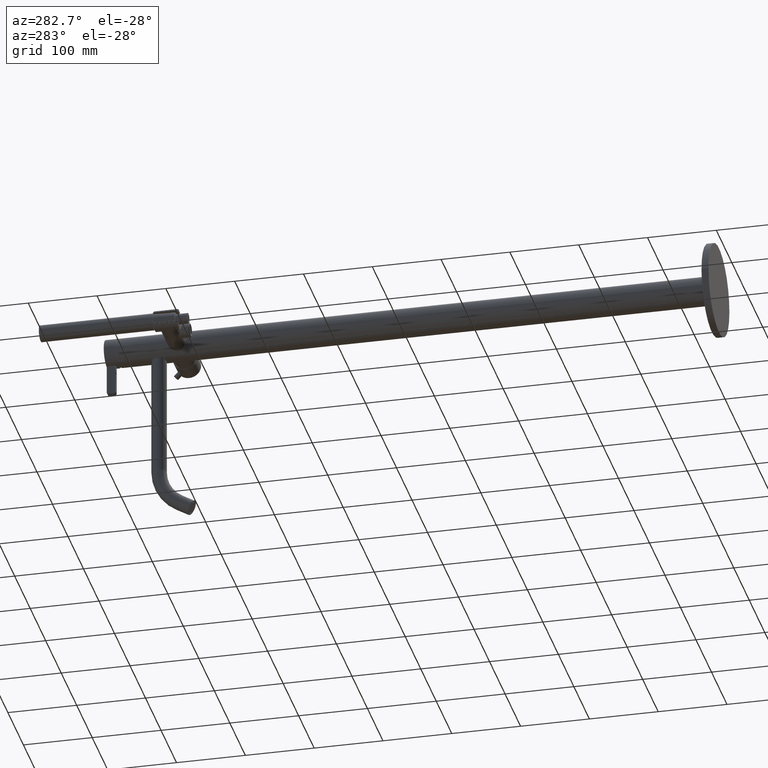
[diagram: clean part render]
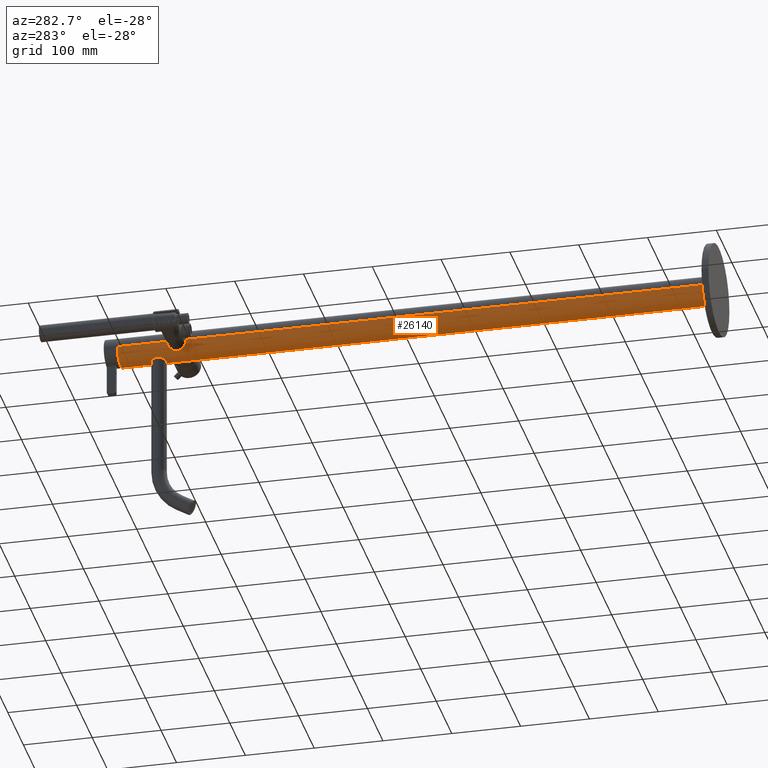
[diagram: same view with one face highlighted and labeled with its STEP entity id]
A machine part, auxiliary view. The second image highlights one B-rep face of the part: STEP entity #26140.
In plain terms, the highlighted cylindrical surface (edge-blend (fillet) strip) has radius 21 mm, axis along (0, -1, 0).
Its self-contained STEP definition (entity closure, byte-faithful):
#10197=CARTESIAN_POINT('',(-2.1E1,8.237257359313E2,0.E0));
#10313=CARTESIAN_POINT('',(-2.1E1,8.514257359313E2,0.E0));
#10315=CARTESIAN_POINT('',(2.1E1,8.546757359313E2,3.477275162954E-14));
#10431=CARTESIAN_POINT('',(2.1E1,8.204757359313E2,-2.837951767113E-14));
#10443=CARTESIAN_POINT('',(1.756270668056E-13,8.565E2,-2.1E1));
#10444=CARTESIAN_POINT('',(-1.057195506929E-1,8.565E2,-2.1E1));
#10445=CARTESIAN_POINT('',(-3.171736264916E-1,8.565030471802E2,
-2.099840361661E1));
#10446=CARTESIAN_POINT('',(-6.343992848357E-1,8.565167779800E2,
-2.099121454801E1));
#10447=CARTESIAN_POINT('',(-9.513809959074E-1,8.565396807180E2,
-2.097923780436E1));
#10448=CARTESIAN_POINT('',(-1.268152781212E0,8.565717967867E2,
-2.096247365382E1));
#10449=CARTESIAN_POINT('',(-1.584366312200E0,8.566131376115E2,
-2.094094701882E1));
#10450=CARTESIAN_POINT('',(-1.900283877417E0,8.566638021665E2,
-2.091464653302E1));
#10451=CARTESIAN_POINT('',(-2.215834098607E0,8.567238885002E2,
-2.088357144582E1));
#10452=CARTESIAN_POINT('',(-2.530514317452E0,8.567934011576E2,
-2.084777947425E1));
#10453=CARTESIAN_POINT('',(-2.844444723145E0,8.568724775157E2,
-2.080727047075E1));
#10454=CARTESIAN_POINT('',(-3.157356145776E0,8.569611900988E2,
-2.076208934350E1));
#10455=CARTESIAN_POINT('',(-3.468961913851E0,8.570595927177E2,
-2.071230199824E1));
#10456=CARTESIAN_POINT('',(-3.779327462904E0,8.571678712849E2,
-2.065792066373E1));
#10457=CARTESIAN_POINT('',(-4.087925970660E0,8.572860151682E2,
-2.059906983969E1));
#10458=CARTESIAN_POINT('',(-4.394832295223E0,8.574142399207E2,
-2.053577535039E1));
#10459=CARTESIAN_POINT('',(-4.699532648769E0,8.575525418348E2,
-2.046818749978E1));
#10460=CARTESIAN_POINT('',(-5.001665136432E0,8.577009502991E2,
-2.039645398942E1));
#10461=CARTESIAN_POINT('',(-5.301126193588E0,8.578596388759E2,
-2.032067032408E1));
#10462=CARTESIAN_POINT('',(-5.597203245983E0,8.580284489641E2,
-2.024110690503E1));
#10463=CARTESIAN_POINT('',(-5.889783146836E0,8.582075345771E2,
-2.015790205425E1));
#10464=CARTESIAN_POINT('',(-6.178306102288E0,8.583967889574E2,
-2.007133425320E1));
#10465=CARTESIAN_POINT('',(-6.462337217485E0,8.585961508667E2,
-1.998167619894E1));
#10466=CARTESIAN_POINT('',(-6.741216032462E0,8.588053635157E2,
-1.988930240553E1));
#10467=CARTESIAN_POINT('',(-7.014537147215E0,8.590243104857E2,
-1.979453693863E1));
#10468=CARTESIAN_POINT('',(-7.281700749512E0,8.592526904193E2,
-1.969779701799E1));
#10469=CARTESIAN_POINT('',(-7.542105802998E0,8.594901206109E2,
-1.959953866509E1));
#10470=CARTESIAN_POINT('',(-7.795552981353E0,8.597365543182E2,
-1.950008872260E1));
#10471=CARTESIAN_POINT('',(-8.041249871995E0,8.599913346351E2,
-1.940002818384E1));
#10472=CARTESIAN_POINT('',(-8.278566866241E0,8.602538248656E2,
-1.929991609234E1));
#10473=CARTESIAN_POINT('',(-8.507179008434E0,8.605236455020E2,
-1.920020637466E1));
#10474=CARTESIAN_POINT('',(-8.726570922683E0,8.608001204639E2,
-1.910145354439E1));
#10475=CARTESIAN_POINT('',(-8.936396025833E0,8.610826855146E2,
-1.900415478782E1));
#10476=CARTESIAN_POINT('',(-9.136113401802E0,8.613703900153E2,
-1.890891339170E1));
#10477=CARTESIAN_POINT('',(-9.325646837595E0,8.616628303550E2,
-1.881612117142E1));
#10478=CARTESIAN_POINT('',(-9.504702748103E0,8.619592136941E2,
-1.872627244830E1));
#10479=CARTESIAN_POINT('',(-9.673215618166E0,8.622590014985E2,
-1.863974717723E1));
#10480=CARTESIAN_POINT('',(-9.831212968427E0,8.625618017335E2,
-1.855686374153E1));
#10481=CARTESIAN_POINT('',(-9.978482729310E0,8.628666667660E2,
-1.847805605837E1));
#10482=CARTESIAN_POINT('',(-1.011522008442E1,8.631733869231E2,
-1.840352733359E1));
#10483=CARTESIAN_POINT('',(-1.024142249007E1,8.634813136261E2,
-1.833356650058E1));
#10484=CARTESIAN_POINT('',(-1.035726285184E1,8.637901389613E2,
-1.826834699786E1));
#10485=CARTESIAN_POINT('',(-1.046293784303E1,8.640996681942E2,
-1.820800409253E1));
#10486=CARTESIAN_POINT('',(-1.055852902438E1,8.644093374984E2,
-1.815271674680E1));
#10487=CARTESIAN_POINT('',(-1.064433292664E1,8.647192845071E2,
-1.810251667189E1));
#10488=CARTESIAN_POINT('',(-1.072046338032E1,8.650291044654E2,
-1.805751794157E1));
#10489=CARTESIAN_POINT('',(-1.078712507010E1,8.653387129352E2,
-1.801775979194E1));
#10490=CARTESIAN_POINT('',(-1.084452930470E1,8.656482441266E2,
-1.798325458678E1));
#10491=CARTESIAN_POINT('',(-1.089277703979E1,8.659573195573E2,
-1.795406012610E1));
#10492=CARTESIAN_POINT('',(-1.093206845219E1,8.662662726169E2,
-1.793015417729E1));
#10493=CARTESIAN_POINT('',(-1.096249510392E1,8.665749890608E2,
-1.791156066889E1));
#10494=CARTESIAN_POINT('',(-1.098414942647E1,8.668833511639E2,
-1.789828463963E1));
#10495=CARTESIAN_POINT('',(-1.099712263737E1,8.671917698357E2,
-1.789031364442E1));
#10496=CARTESIAN_POINT('',(-1.100143846469E1,8.674999819967E2,
-1.788765904098E1));
#10497=CARTESIAN_POINT('',(-1.099712350379E1,8.678082027463E2,
-1.789031311168E1));
#10498=CARTESIAN_POINT('',(-1.098415060278E1,8.681166289289E2,
-1.789828391770E1));
#10499=CARTESIAN_POINT('',(-1.096249639530E1,8.684249957490E2,
-1.791155987827E1));
#10500=CARTESIAN_POINT('',(-1.093207033777E1,8.687337105647E2,
-1.793015302716E1));
#10501=CARTESIAN_POINT('',(-1.089277937347E1,8.690426639684E2,
-1.795405870971E1));
#10502=CARTESIAN_POINT('',(-1.084453228256E1,8.693517383512E2,
-1.798325279002E1));
#10503=CARTESIAN_POINT('',(-1.078712865371E1,8.696612692352E2,
-1.801775764606E1));
#10504=CARTESIAN_POINT('',(-1.072046713231E1,8.699708792574E2,
-1.805751571320E1));
#10505=CARTESIAN_POINT('',(-1.064433746227E1,8.702806981055E2,
-1.810251400366E1));
#10506=CARTESIAN_POINT('',(-1.055853388403E1,8.705906459320E2,
-1.815271391969E1));
#10507=CARTESIAN_POINT('',(-1.046294317037E1,8.709003153834E2,
-1.820800102937E1));
#10508=CARTESIAN_POINT('',(-1.035726895396E1,8.712098440135E2,
-1.826834353734E1));
#10509=CARTESIAN_POINT('',(-1.024142866882E1,8.715186706431E2,
-1.833356304823E1));
#10510=CARTESIAN_POINT('',(-1.011522688564E1,8.718265971693E2,
-1.840352359376E1));
#10511=CARTESIAN_POINT('',(-9.978489936536E0,8.721333177093E2,
-1.847805216473E1));
#10512=CARTESIAN_POINT('',(-9.831221100353E0,8.724381820355E2,
-1.855685942871E1));
#10513=CARTESIAN_POINT('',(-9.673224680018E0,8.727409818138E2,
-1.863974247582E1));
#10514=CARTESIAN_POINT('',(-9.504710365474E0,8.730407733260E2,
-1.872626858850E1));
#10515=CARTESIAN_POINT('',(-9.325652942707E0,8.733371599733E2,
-1.881611815377E1));
#10516=CARTESIAN_POINT('',(-9.136117796330E0,8.736296034504E2,
-1.890891126931E1));
#10517=CARTESIAN_POINT('',(-8.936401260725E0,8.739173071949E2,
-1.900415232569E1));
#10518=CARTESIAN_POINT('',(-8.726575875518E0,8.741998730588E2,
-1.910145127631E1));
#10519=CARTESIAN_POINT('',(-8.507186193828E0,8.744763457173E2,
-1.920020318682E1));
#10520=CARTESIAN_POINT('',(-8.278573010161E0,8.747461681555E2,
-1.929991346362E1));
#10521=CARTESIAN_POINT('',(-8.041256003231E0,8.750086587707E2,
-1.940002563583E1));
#10522=CARTESIAN_POINT('',(-7.795560818241E0,8.752634378007E2,
-1.950008558564E1));
#10523=CARTESIAN_POINT('',(-7.542112319426E0,8.755098733301E2,
-1.959953617581E1));
#10524=CARTESIAN_POINT('',(-7.281703118435E0,8.757473075437E2,
-1.969779615643E1));
#10525=CARTESIAN_POINT('',(-7.014538218014E0,8.759756886561E2,
-1.979453656737E1));
#10526=CARTESIAN_POINT('',(-6.741215084967E0,8.761946372327E2,
-1.988930273083E1));
#10527=CARTESIAN_POINT('',(-6.462337028445E0,8.764038492528E2,
-1.998167625455E1));
#10528=CARTESIAN_POINT('',(-6.178306453290E0,8.766032107981E2,
-2.007133414286E1));
#10529=CARTESIAN_POINT('',(-5.889783712117E0,8.767924650730E2,
-2.015790189206E1));
#10530=CARTESIAN_POINT('',(-5.597202637124E0,8.769715514102E2,
-2.024110707888E1));
#10531=CARTESIAN_POINT('',(-5.301125547537E0,8.771403614638E2,
-2.032067048659E1));
#10532=CARTESIAN_POINT('',(-5.001665682026E0,8.772990494236E2,
-2.039645385612E1));
#10533=CARTESIAN_POINT('',(-4.699532338147E0,8.774474583091E2,
-2.046818756995E1));
#10534=CARTESIAN_POINT('',(-4.394834355261E0,8.775857591367E2,
-2.053577489005E1));
#10535=CARTESIAN_POINT('',(-4.087931173719E0,8.777139827352E2,
-2.059906880054E1));
#10536=CARTESIAN_POINT('',(-3.779331656387E0,8.778321272104E2,
-2.065791990960E1));
#10537=CARTESIAN_POINT('',(-3.468963264091E0,8.779404068643E2,
-2.071230178641E1));
#10538=CARTESIAN_POINT('',(-3.157356001626E0,8.780388099377E2,
-2.076208936221E1));
#10539=CARTESIAN_POINT('',(-2.844446345362E0,8.781275220387E2,
-2.080727024340E1));
#10540=CARTESIAN_POINT('',(-2.530515576732E0,8.782065985531E2,
-2.084777932547E1));
#10541=CARTESIAN_POINT('',(-2.215835305676E0,8.782761112432E2,
-2.088357131346E1));
#10542=CARTESIAN_POINT('',(-1.900285163233E0,8.783361976331E2,
-2.091464642889E1));
#10543=CARTESIAN_POINT('',(-1.584364234833E0,8.783868626976E2,
-2.094094717943E1));
#10544=CARTESIAN_POINT('',(-1.268152259307E0,8.784282032756E2,
-2.096247368636E1));
#10545=CARTESIAN_POINT('',(-9.513785697359E-1,8.784603194886E2,
-2.097923791229E1));
#10546=CARTESIAN_POINT('',(-6.343993717682E-1,8.784832220114E2,
-2.099121454354E1));
#10547=CARTESIAN_POINT('',(-3.171713817370E-1,8.784969528974E2,
-2.099840365719E1));
#10548=CARTESIAN_POINT('',(-1.057186587662E-1,8.785E2,-2.1E1));
#10549=CARTESIAN_POINT('',(4.945029112773E-13,8.785E2,-2.1E1));
#10551=CARTESIAN_POINT('',(4.945029112773E-13,8.785E2,-2.1E1));
#10552=CARTESIAN_POINT('',(1.057195868740E-1,8.785E2,-2.1E1));
#10553=CARTESIAN_POINT('',(3.171736826902E-1,8.784969528141E2,
-2.099840361360E1));
#10554=CARTESIAN_POINT('',(6.343988116952E-1,8.784832220465E2,
-2.099121456189E1));
#10555=CARTESIAN_POINT('',(9.513806419409E-1,8.784603193081E2,
-2.097923781801E1));
#10556=CARTESIAN_POINT('',(1.268151523067E0,8.784282033556E2,
-2.096247372802E1));
#10557=CARTESIAN_POINT('',(1.584365487346E0,8.783868625142E2,
-2.094094708410E1));
#10558=CARTESIAN_POINT('',(1.900283264243E0,8.783361979414E2,
-2.091464658888E1));
#10559=CARTESIAN_POINT('',(2.215833512439E0,8.782761116206E2,
-2.088357150814E1));
#10560=CARTESIAN_POINT('',(2.530513786836E0,8.782065989690E2,
-2.084777953925E1));
#10561=CARTESIAN_POINT('',(2.844444347306E0,8.781275225864E2,
-2.080727052283E1));
#10562=CARTESIAN_POINT('',(3.157355882450E0,8.780388099815E2,
-2.076208938421E1));
#10563=CARTESIAN_POINT('',(3.468961618219E0,8.779404073758E2,
-2.071230204559E1));
#10564=CARTESIAN_POINT('',(3.779326524683E0,8.778321290528E2,
-2.065792083292E1));
#10565=CARTESIAN_POINT('',(4.087925135032E0,8.777139851742E2,
-2.059907000912E1));
#10566=CARTESIAN_POINT('',(4.394832358277E0,8.775857600601E2,
-2.053577534049E1));
#10567=CARTESIAN_POINT('',(4.699532997044E0,8.774474580018E2,
-2.046818742027E1));
#10568=CARTESIAN_POINT('',(5.001665580458E0,8.772990494757E2,
-2.039645388109E1));
#10569=CARTESIAN_POINT('',(5.301126743277E0,8.771403608234E2,
-2.032067018122E1));
#10570=CARTESIAN_POINT('',(5.597203845577E0,8.769715506810E2,
-2.024110673899E1));
#10571=CARTESIAN_POINT('',(5.889783726927E0,8.767924650581E2,
-2.015790188571E1));
#10572=CARTESIAN_POINT('',(6.178306937871E0,8.766032104763E2,
-2.007133399622E1));
#10573=CARTESIAN_POINT('',(6.462337893027E0,8.764038486425E2,
-1.998167598020E1));
#10574=CARTESIAN_POINT('',(6.741216774935E0,8.761946359070E2,
-1.988930215332E1));
#10575=CARTESIAN_POINT('',(7.014537474509E0,8.759756892338E2,
-1.979453681983E1));
#10576=CARTESIAN_POINT('',(7.281700552340E0,8.757473097450E2,
-1.969779708829E1));
#10577=CARTESIAN_POINT('',(7.542105232468E0,8.755098799238E2,
-1.959953888410E1));
#10578=CARTESIAN_POINT('',(7.795552572762E0,8.752634460980E2,
-1.950008888739E1));
#10579=CARTESIAN_POINT('',(8.041249693750E0,8.750086655583E2,
-1.940002825822E1));
#10580=CARTESIAN_POINT('',(8.278566596107E0,8.747461754350E2,
-1.929991620680E1));
#10581=CARTESIAN_POINT('',(8.507178652165E0,8.744763549474E2,
-1.920020653510E1));
#10582=CARTESIAN_POINT('',(8.726571397324E0,8.741998789261E2,
-1.910145332887E1));
#10583=CARTESIAN_POINT('',(8.936396136391E0,8.739173143229E2,
-1.900415473448E1));
#10584=CARTESIAN_POINT('',(9.136113500622E0,8.736296098301E2,
-1.890891334309E1));
#10585=CARTESIAN_POINT('',(9.325646326941E0,8.733371704331E2,
-1.881612142152E1));
#10586=CARTESIAN_POINT('',(9.504701699093E0,8.730407880893E2,
-1.872627297949E1));
#10587=CARTESIAN_POINT('',(9.673214485957E0,8.727410005948E2,
-1.863974776534E1));
#10588=CARTESIAN_POINT('',(9.831212107934E0,8.724381999918E2,
-1.855686419843E1));
#10589=CARTESIAN_POINT('',(9.978482080578E0,8.721333346363E2,
-1.847805640911E1));
#10590=CARTESIAN_POINT('',(1.011521951086E1,8.718266144182E2,
-1.840352764898E1));
#10591=CARTESIAN_POINT('',(1.024142196660E1,8.715186877094E2,
-1.833356679317E1));
#10592=CARTESIAN_POINT('',(1.035726240258E1,8.712098622968E2,
-1.826834725278E1));
#10593=CARTESIAN_POINT('',(1.046293747529E1,8.709003329419E2,
-1.820800430403E1));
#10594=CARTESIAN_POINT('',(1.055852872761E1,8.705906635197E2,
-1.815271691956E1));
#10595=CARTESIAN_POINT('',(1.064433268744E1,8.702807164126E2,
-1.810251681265E1));
#10596=CARTESIAN_POINT('',(1.072046319129E1,8.699708963593E2,
-1.805751805388E1));
#10597=CARTESIAN_POINT('',(1.078712492572E1,8.696612877907E2,
-1.801775987844E1));
#10598=CARTESIAN_POINT('',(1.084452919941E1,8.693517564962E2,
-1.798325465032E1));
#10599=CARTESIAN_POINT('',(1.089277696720E1,8.690426809624E2,
-1.795406017018E1));
#10600=CARTESIAN_POINT('',(1.093206840590E1,8.687337278019E2,
-1.793015420553E1));
#10601=CARTESIAN_POINT('',(1.096249507803E1,8.684250112573E2,
-1.791156068474E1));
#10602=CARTESIAN_POINT('',(1.098414941519E1,8.681166490539E2,
-1.789828464656E1));
#10603=CARTESIAN_POINT('',(1.099712263503E1,8.678082302815E2,
-1.789031364586E1));
#10604=CARTESIAN_POINT('',(1.100143846563E1,8.675000180198E2,
-1.788765904041E1));
#10605=CARTESIAN_POINT('',(1.099712350237E1,8.671917971694E2,
-1.789031311255E1));
#10606=CARTESIAN_POINT('',(1.098415059335E1,8.668833708862E2,
-1.789828392349E1));
#10607=CARTESIAN_POINT('',(1.096249637219E1,8.665750039658E2,
-1.791155989242E1));
#10608=CARTESIAN_POINT('',(1.093207029521E1,8.662662890496E2,
-1.793015305313E1));
#10609=CARTESIAN_POINT('',(1.089277930555E1,8.659573355449E2,
-1.795405875095E1));
#10610=CARTESIAN_POINT('',(1.084453218292E1,8.656482610592E2,
-1.798325285015E1));
#10611=CARTESIAN_POINT('',(1.078712851596E1,8.653387300720E2,
-1.801775772859E1));
#10612=CARTESIAN_POINT('',(1.072046695088E1,8.650291199510E2,
-1.805751582100E1));
#10613=CARTESIAN_POINT('',(1.064433723168E1,8.647193010079E2,
-1.810251413935E1));
#10614=CARTESIAN_POINT('',(1.055853359698E1,8.644093530832E2,
-1.815271408679E1));
#10615=CARTESIAN_POINT('',(1.046294281352E1,8.640996835140E2,
-1.820800123462E1));
#10616=CARTESIAN_POINT('',(1.035726851657E1,8.637901547615E2,
-1.826834378553E1));
#10617=CARTESIAN_POINT('',(1.024142815788E1,8.634813280533E2,
-1.833356333382E1));
#10618=CARTESIAN_POINT('',(1.011522632554E1,8.631734015209E2,
-1.840352390173E1));
#10619=CARTESIAN_POINT('',(9.978489303724E0,8.628666809227E2,
-1.847805250686E1));
#10620=CARTESIAN_POINT('',(9.831220258650E0,8.625618162766E2,
-1.855685987564E1));
#10621=CARTESIAN_POINT('',(9.673223565389E0,8.622590161249E2,
-1.863974305483E1));
#10622=CARTESIAN_POINT('',(9.504709326907E0,8.619592249083E2,
-1.872626911439E1));
#10623=CARTESIAN_POINT('',(9.325652440555E0,8.616628392517E2,
-1.881611839972E1));
#10624=CARTESIAN_POINT('',(9.136117890381E0,8.613703966977E2,
-1.890891122294E1));
#10625=CARTESIAN_POINT('',(8.936401392715E0,8.610826929970E2,
-1.900415226232E1));
#10626=CARTESIAN_POINT('',(8.726576325795E0,8.608001275187E2,
-1.910145107203E1));
#10627=CARTESIAN_POINT('',(8.507185825789E0,8.605236538192E2,
-1.920020335245E1));
#10628=CARTESIAN_POINT('',(8.278572714410E0,8.602538315144E2,
-1.929991358911E1));
#10629=CARTESIAN_POINT('',(8.041255803153E0,8.599913410128E2,
-1.940002571922E1));
#10630=CARTESIAN_POINT('',(7.795560389878E0,8.597365617632E2,
-1.950008575834E1));
#10631=CARTESIAN_POINT('',(7.542111723343E0,8.594901261110E2,
-1.959953640470E1));
#10632=CARTESIAN_POINT('',(7.281702886722E0,8.592526922616E2,
-1.969779623951E1));
#10633=CARTESIAN_POINT('',(7.014538509467E0,8.590243115945E2,
-1.979453646135E1));
#10634=CARTESIAN_POINT('',(6.741215777330E0,8.588053633059E2,
-1.988930249556E1));
#10635=CARTESIAN_POINT('',(6.462337676200E0,8.585961512178E2,
-1.998167604481E1));
#10636=CARTESIAN_POINT('',(6.178307232903E0,8.583967897300E2,
-2.007133390320E1));
#10637=CARTESIAN_POINT('',(5.889784244112E0,8.582075352615E2,
-2.015790173752E1));
#10638=CARTESIAN_POINT('',(5.597203184209E0,8.580284489136E2,
-2.024110692739E1));
#10639=CARTESIAN_POINT('',(5.301126046448E0,8.578596388090E2,
-2.032067035696E1));
#10640=CARTESIAN_POINT('',(5.001666075318E0,8.577009507757E2,
-2.039645376024E1));
#10641=CARTESIAN_POINT('',(4.699532635255E0,8.575525418302E2,
-2.046818750213E1));
#10642=CARTESIAN_POINT('',(4.394834377928E0,8.574142408648E2,
-2.053577488884E1));
#10643=CARTESIAN_POINT('',(4.087930282464E0,8.572860169003E2,
-2.059906898092E1));
#10644=CARTESIAN_POINT('',(3.779330703333E0,8.571678724467E2,
-2.065792008141E1));
#10645=CARTESIAN_POINT('',(3.468962940559E0,8.570595930328E2,
-2.071230183847E1));
#10646=CARTESIAN_POINT('',(3.157355723496E0,8.569611899778E2,
-2.076208940511E1));
#10647=CARTESIAN_POINT('',(2.844445955401E0,8.568724778555E2,
-2.080727029742E1));
#10648=CARTESIAN_POINT('',(2.530515031813E0,8.567934013169E2,
-2.084777939222E1));
#10649=CARTESIAN_POINT('',(2.215834702155E0,8.567238886325E2,
-2.088357137759E1));
#10650=CARTESIAN_POINT('',(1.900284537742E0,8.566638022568E2,
-2.091464648594E1));
#10651=CARTESIAN_POINT('',(1.584363387301E0,8.566131371737E2,
-2.094094724630E1));
#10652=CARTESIAN_POINT('',(1.268151022719E0,8.565717965847E2,
-2.096247375923E1));
#10653=CARTESIAN_POINT('',(9.513782058143E-1,8.565396804843E2,
-2.097923792646E1));
#10654=CARTESIAN_POINT('',(6.343989097739E-1,8.565167779628E2,
-2.099121455704E1));
#10655=CARTESIAN_POINT('',(3.171714323179E-1,8.565030471081E2,
-2.099840365434E1));
#10656=CARTESIAN_POINT('',(1.057186928442E-1,8.565E2,-2.1E1));
#10657=CARTESIAN_POINT('',(1.756270668056E-13,8.565E2,-2.1E1));
#10659=CARTESIAN_POINT('',(0.E0,6.45E1,0.E0));
#10660=DIRECTION('',(0.E0,-1.E0,0.E0));
#10661=DIRECTION('',(-1.E0,0.E0,0.E0));
#10662=AXIS2_PLACEMENT_3D('',#10659,#10660,#10661);
#10664=DIRECTION('',(0.E0,1.E0,0.E0));
#10665=VECTOR('',#10664,7.559757359313E2);
#10666=CARTESIAN_POINT('',(2.1E1,6.45E1,0.E0));
#10667=LINE('',#10666,#10665);
#10668=CARTESIAN_POINT('',(2.1E1,8.204757359313E2,-2.837951767113E-14));
#10669=CARTESIAN_POINT('',(2.1E1,8.204757359313E2,-1.307848423567E-1));
#10670=CARTESIAN_POINT('',(2.099755689091E1,8.204787361071E2,
-3.924804544639E-1));
#10671=CARTESIAN_POINT('',(2.098653690812E1,8.204922712209E2,
-7.853559466915E-1));
#10672=CARTESIAN_POINT('',(2.096815568869E1,8.205148557002E2,
-1.178150293055E0));
#10673=CARTESIAN_POINT('',(2.094238706176E1,8.205465338767E2,
-1.571048588092E0));
#10674=CARTESIAN_POINT('',(2.090919392125E1,8.205873686623E2,
-1.964057579950E0));
#10675=CARTESIAN_POINT('',(2.086857359668E1,8.206373859049E2,
-2.356839485412E0));
#10676=CARTESIAN_POINT('',(2.082046867661E1,8.206966843534E2,
-2.749629538903E0));
#10677=CARTESIAN_POINT('',(2.076476078907E1,8.207654441603E2,
-3.142840365255E0));
#10678=CARTESIAN_POINT('',(2.070142486321E1,8.208437370266E2,
-3.536108774961E0));
#10679=CARTESIAN_POINT('',(2.063038817205E1,8.209317004411E2,
-3.929445611767E0));
#10680=CARTESIAN_POINT('',(2.055156009876E1,8.210295019777E2,
-4.322873388144E0));
#10681=CARTESIAN_POINT('',(2.046489402849E1,8.211372630542E2,
-4.716187230244E0));
#10682=CARTESIAN_POINT('',(2.037025048342E1,8.212552300881E2,
-5.109569794882E0));
#10683=CARTESIAN_POINT('',(2.026756312066E1,8.213835691545E2,
-5.502839717993E0));
#10684=CARTESIAN_POINT('',(2.015666073987E1,8.215225894668E2,
-5.896184754490E0));
#10685=CARTESIAN_POINT('',(2.003751662921E1,8.216724330492E2,
-6.289227826391E0));
#10686=CARTESIAN_POINT('',(1.991014497443E1,8.218332035154E2,
-6.681551559398E0));
#10687=CARTESIAN_POINT('',(1.977434212902E1,8.220052957224E2,
-7.073403523878E0));
#10688=CARTESIAN_POINT('',(1.963005614131E1,8.221889327962E2,
-7.464521806860E0));
#10689=CARTESIAN_POINT('',(1.947731174002E1,8.223842593925E2,
-7.854496455157E0));
#10690=CARTESIAN_POINT('',(1.931594129398E1,8.225916900527E2,
-8.243407295167E0));
#10691=CARTESIAN_POINT('',(1.914608919651E1,8.228112646850E2,
-8.630591800322E0));
#10692=CARTESIAN_POINT('',(1.896766058155E1,8.230433594196E2,
-9.015999062664E0));
#10693=CARTESIAN_POINT('',(1.878067639595E1,8.232882355530E2,
-9.399311336989E0));
#10694=CARTESIAN_POINT('',(1.858524014059E1,8.235460829665E2,
-9.780086255277E0));
#10695=CARTESIAN_POINT('',(1.838150905001E1,8.238170599866E2,
-1.015783873373E1));
#10696=CARTESIAN_POINT('',(1.816958635013E1,8.241014430869E2,
-1.053223218271E1));
#10697=CARTESIAN_POINT('',(1.794984198159E1,8.243992016469E2,
-1.090252026506E1));
#10698=CARTESIAN_POINT('',(1.772272647957E1,8.247102418940E2,
-1.126794509575E1));
#10699=CARTESIAN_POINT('',(1.748859147920E1,8.250346608985E2,
-1.162800395181E1));
#10700=CARTESIAN_POINT('',(1.724793700983E1,8.253724137489E2,
-1.198205027865E1));
#10701=CARTESIAN_POINT('',(1.700131171047E1,8.257234596870E2,
-1.232945316189E1));
#10702=CARTESIAN_POINT('',(1.675010666307E1,8.260866070189E2,
-1.266856766519E1));
#10703=CARTESIAN_POINT('',(1.649536121694E1,8.264611861773E2,
-1.299846677783E1));
#10704=CARTESIAN_POINT('',(1.623817325181E1,8.268464830870E2,
-1.331829089623E1));
#10705=CARTESIAN_POINT('',(1.597972414864E1,8.272416851360E2,
-1.362723071382E1));
#10706=CARTESIAN_POINT('',(1.572102214055E1,8.276462847218E2,
-1.392479831515E1));
#10707=CARTESIAN_POINT('',(1.546383551519E1,8.280585961066E2,
-1.420976447195E1));
#10708=CARTESIAN_POINT('',(1.520995321539E1,8.284768051926E2,
-1.448108089153E1));
#10709=CARTESIAN_POINT('',(1.496109373722E1,8.288991019818E2,
-1.473792613718E1));
#10710=CARTESIAN_POINT('',(1.471932471262E1,8.293228817991E2,
-1.497926831453E1));
#10711=CARTESIAN_POINT('',(1.448603071614E1,8.297464788095E2,
-1.520487066941E1));
#10712=CARTESIAN_POINT('',(1.426262558572E1,8.301679409206E2,
-1.541450355166E1));
#10713=CARTESIAN_POINT('',(1.405000552253E1,8.305860258926E2,
-1.560843183147E1));
#10714=CARTESIAN_POINT('',(1.384908047495E1,8.309992250083E2,
-1.578687202850E1));
#10715=CARTESIAN_POINT('',(1.366045814993E1,8.314063429099E2,
-1.595026882720E1));
#10716=CARTESIAN_POINT('',(1.348438660377E1,8.318067213201E2,
-1.609930490997E1));
#10717=CARTESIAN_POINT('',(1.332112691883E1,8.321994335409E2,
-1.623457073596E1));
#10718=CARTESIAN_POINT('',(1.317045274647E1,8.325845110466E2,
-1.635697460800E1));
#10719=CARTESIAN_POINT('',(1.303214307007E1,8.329619044823E2,
-1.646732230898E1));
#10720=CARTESIAN_POINT('',(1.290589563138E1,8.333316814336E2,
-1.656639977466E1));
#10721=CARTESIAN_POINT('',(1.279126941983E1,8.336942907758E2,
-1.665502033122E1));
#10722=CARTESIAN_POINT('',(1.272236299811E1,8.339313944312E2,
-1.670757777556E1));
#10723=CARTESIAN_POINT('',(1.268974979235E1,8.340487329839E2,
-1.673231156201E1));
#10725=DIRECTION('',(0.E0,-1.E0,-1.007289682422E-14));
#10726=VECTOR('',#10725,7.054005894827E0);
#10727=CARTESIAN_POINT('',(1.268974979235E1,8.411027388787E2,
-1.673231156201E1));
#10728=LINE('',#10727,#10726);
#10729=CARTESIAN_POINT('',(1.268974979235E1,8.411027388787E2,
-1.673231156201E1));
#10730=CARTESIAN_POINT('',(1.272236406209E1,8.412200812594E2,
-1.670757696864E1));
#10731=CARTESIAN_POINT('',(1.279127184698E1,8.414571890504E2,
-1.665501846719E1));
#10732=CARTESIAN_POINT('',(1.290589594724E1,8.418197911044E2,
-1.656639951462E1));
#10733=CARTESIAN_POINT('',(1.303213963499E1,8.421895574918E2,
-1.646732501405E1));
#10734=CARTESIAN_POINT('',(1.317044698254E1,8.425669455017E2,
-1.635697923739E1));
#10735=CARTESIAN_POINT('',(1.332111896741E1,8.429520185928E2,
-1.623457725356E1));
#10736=CARTESIAN_POINT('',(1.348437945995E1,8.433447339923E2,
-1.609931090999E1));
#10737=CARTESIAN_POINT('',(1.366045486357E1,8.437451218298E2,
-1.595027166600E1));
#10738=CARTESIAN_POINT('',(1.384908027184E1,8.441522465226E2,
-1.578687222910E1));
#10739=CARTESIAN_POINT('',(1.405000690563E1,8.445654487006E2,
-1.560843057337E1));
#10740=CARTESIAN_POINT('',(1.426262354660E1,8.449835269647E2,
-1.541450542092E1));
#10741=CARTESIAN_POINT('',(1.448602986185E1,8.454049915447E2,
-1.520487151030E1));
#10742=CARTESIAN_POINT('',(1.471932641820E1,8.458285931342E2,
-1.497926665614E1));
#10743=CARTESIAN_POINT('',(1.496109471386E1,8.462523714933E2,
-1.473792510383E1));
#10744=CARTESIAN_POINT('',(1.520994893710E1,8.466746594491E2,
-1.448108532893E1));
#10745=CARTESIAN_POINT('',(1.546383084555E1,8.470928682424E2,
-1.420976961395E1));
#10746=CARTESIAN_POINT('',(1.572102501132E1,8.475051917747E2,
-1.392479517284E1));
#10747=CARTESIAN_POINT('',(1.597972989828E1,8.479097955979E2,
-1.362722395507E1));
#10748=CARTESIAN_POINT('',(1.623817476169E1,8.483049909994E2,
-1.331828896344E1));
#10749=CARTESIAN_POINT('',(1.649535649201E1,8.486902786114E2,
-1.299847265374E1));
#10750=CARTESIAN_POINT('',(1.675009551161E1,8.490648485508E2,
-1.266858231768E1));
#10751=CARTESIAN_POINT('',(1.700129874932E1,8.494279935934E2,
-1.232947104405E1));
#10752=CARTESIAN_POINT('',(1.724792565526E1,8.497790420709E2,
-1.198206662780E1));
#10753=CARTESIAN_POINT('',(1.748857865287E1,8.501167930643E2,
-1.162802317590E1));
#10754=CARTESIAN_POINT('',(1.772271210361E1,8.504412101715E2,
-1.126796771531E1));
#10755=CARTESIAN_POINT('',(1.794983018371E1,8.507522541570E2,
-1.090253973895E1));
#10756=CARTESIAN_POINT('',(1.816957558441E1,8.510500142611E2,
-1.053225075711E1));
#10757=CARTESIAN_POINT('',(1.838149862729E1,8.513343979524E2,
-1.015785758457E1));
#10758=CARTESIAN_POINT('',(1.858522965774E1,8.516053750108E2,
-9.780106169686E0));
#10759=CARTESIAN_POINT('',(1.878066665048E1,8.518632235035E2,
-9.399330834352E0));
#10760=CARTESIAN_POINT('',(1.896765164153E1,8.521081007748E2,
-9.016017853069E0));
#10761=CARTESIAN_POINT('',(1.914608005239E1,8.523401953227E2,
-8.630612107742E0));
#10762=CARTESIAN_POINT('',(1.931593417081E1,8.525597726319E2,
-8.243424045897E0));
#10763=CARTESIAN_POINT('',(1.947730521575E1,8.527672041052E2,
-7.854512618857E0));
#10764=CARTESIAN_POINT('',(1.963004959668E1,8.529625307172E2,
-7.464539003808E0));
#10765=CARTESIAN_POINT('',(1.977433540843E1,8.531461676038E2,
-7.073422242368E0));
#10766=CARTESIAN_POINT('',(1.991013748377E1,8.533182588741E2,
-6.681573871192E0));
#10767=CARTESIAN_POINT('',(2.003751078179E1,8.534790314494E2,
-6.289246588798E0));
#10768=CARTESIAN_POINT('',(2.015665678671E1,8.536288774341E2,
-5.896198367119E0));
#10769=CARTESIAN_POINT('',(2.026756013861E1,8.537678989763E2,
-5.502850741278E0));
#10770=CARTESIAN_POINT('',(2.037024780357E1,8.538962384296E2,
-5.109580447170E0));
#10771=CARTESIAN_POINT('',(2.046489089283E1,8.540142049041E2,
-4.716200717877E0));
#10772=CARTESIAN_POINT('',(2.055155675405E1,8.541219657312E2,
-4.322889348290E0));
#10773=CARTESIAN_POINT('',(2.063038596097E1,8.542197686815E2,
-3.929457302227E0));
#10774=CARTESIAN_POINT('',(2.070142284150E1,8.543077323349E2,
-3.536120657199E0));
#10775=CARTESIAN_POINT('',(2.076475962862E1,8.543860262694E2,
-3.142848221924E0));
#10776=CARTESIAN_POINT('',(2.082046782639E1,8.544547864604E2,-2.74963587E0));
#10777=CARTESIAN_POINT('',(2.086857255561E1,8.545140846752E2,
-2.356848722455E0));
#10778=CARTESIAN_POINT('',(2.090919354056E1,8.545641027320E2,
-1.964062069131E0));
#10779=CARTESIAN_POINT('',(2.094238703273E1,8.546049379502E2,
-1.571048996333E0));
#10780=CARTESIAN_POINT('',(2.096815561842E1,8.546366160761E2,
-1.178151729910E0));
#10781=CARTESIAN_POINT('',(2.098653704203E1,8.546592008061E2,
-7.853529271735E-1));
#10782=CARTESIAN_POINT('',(2.099755693509E1,8.546727358097E2,
-3.924774802871E-1));
#10783=CARTESIAN_POINT('',(2.1E1,8.546757359313E2,-1.307835056102E-1));
#10784=CARTESIAN_POINT('',(2.1E1,8.546757359313E2,3.477275162954E-14));
#10786=DIRECTION('',(0.E0,1.E0,0.E0));
#10787=VECTOR('',#10786,6.882426406871E1);
#10788=CARTESIAN_POINT('',(2.1E1,8.546757359313E2,3.477275162954E-14));
#10789=LINE('',#10788,#10787);
#10790=DIRECTION('',(0.E0,1.E0,0.E0));
#10791=VECTOR('',#10790,7.207426406871E1);
#10792=CARTESIAN_POINT('',(-2.1E1,8.514257359313E2,0.E0));
#10793=LINE('',#10792,#10791);
#10794=CARTESIAN_POINT('',(-2.1E1,8.514257359313E2,0.E0));
#10795=CARTESIAN_POINT('',(-2.1E1,8.514257359313E2,-1.194723634303E-1));
#10796=CARTESIAN_POINT('',(-2.099796146617E1,8.514226453074E2,
-3.584930138326E-1));
#10797=CARTESIAN_POINT('',(-2.098876969427E1,8.514087043656E2,
-7.172717556334E-1));
#10798=CARTESIAN_POINT('',(-2.097344924290E1,8.513854505411E2,
-1.075819281840E0));
#10799=CARTESIAN_POINT('',(-2.095198184298E1,8.513528293793E2,
-1.434402826614E0));
#10800=CARTESIAN_POINT('',(-2.092436003933E1,8.513107916183E2,
-1.792832958812E0));
#10801=CARTESIAN_POINT('',(-2.089058510920E1,8.512592897857E2,
-2.150966270676E0));
#10802=CARTESIAN_POINT('',(-2.085060950317E1,8.511981895792E2,
-2.509065289568E0));
#10803=CARTESIAN_POINT('',(-2.080443582378E1,8.511274201599E2,
-2.866867208067E0));
#10804=CARTESIAN_POINT('',(-2.075199510665E1,8.510467867654E2,
-3.224650397986E0));
#10805=CARTESIAN_POINT('',(-2.069330449812E1,8.509562111839E2,
-3.582024600804E0));
#10806=CARTESIAN_POINT('',(-2.062839737665E1,8.508556250364E2,
-3.938668225835E0));
#10807=CARTESIAN_POINT('',(-2.055720064684E1,8.507447768328E2,
-4.294825406554E0));
#10808=CARTESIAN_POINT('',(-2.047976144115E1,8.506235821659E2,
-4.650110234410E0));
#10809=CARTESIAN_POINT('',(-2.039602345124E1,8.504917733560E2,
-5.004649404565E0));
#10810=CARTESIAN_POINT('',(-2.030606404198E1,8.503492686248E2,
-5.357994487426E0));
#10811=CARTESIAN_POINT('',(-2.020990546845E1,8.501958750428E2,
-5.710005463407E0));
#10812=CARTESIAN_POINT('',(-2.010753818605E1,8.500313182681E2,
-6.060641614370E0));
#10813=CARTESIAN_POINT('',(-1.999913353546E1,8.498555839892E2,
-6.409295665388E0));
#10814=CARTESIAN_POINT('',(-1.988475007333E1,8.496684442450E2,
-6.755816628008E0));
#10815=CARTESIAN_POINT('',(-1.976452658020E1,8.494697634584E2,
-7.099834980137E0));
#10816=CARTESIAN_POINT('',(-1.963867419463E1,8.492594885683E2,
-7.440859735024E0));
#10817=CARTESIAN_POINT('',(-1.950738572951E1,8.490374947502E2,
-7.778524775303E0));
#10818=CARTESIAN_POINT('',(-1.937100234020E1,8.488038666413E2,
-8.112172100432E0));
#10819=CARTESIAN_POINT('',(-1.922978757077E1,8.485585125450E2,
-8.441428686638E0));
#10820=CARTESIAN_POINT('',(-1.908422953018E1,8.483016872181E2,
-8.765493201183E0));
#10821=CARTESIAN_POINT('',(-1.893467287433E1,8.480333512163E2,
-9.083995349714E0));
#10822=CARTESIAN_POINT('',(-1.878172152476E1,8.477538818389E2,
-9.396095901501E0));
#10823=CARTESIAN_POINT('',(-1.862607309288E1,8.474638077143E2,
-9.700917467987E0));
#10824=CARTESIAN_POINT('',(-1.846827260134E1,8.471633486333E2,
-9.997995776353E0));
#10825=CARTESIAN_POINT('',(-1.830901089413E1,8.468529634631E2,
-1.028666667937E1));
#10826=CARTESIAN_POINT('',(-1.814929941705E1,8.465337444476E2,
-1.056581587677E1));
#10827=CARTESIAN_POINT('',(-1.798998463246E1,8.462065049661E2,
-1.083476124359E1));
#10828=CARTESIAN_POINT('',(-1.783177839388E1,8.458717988282E2,
-1.109311597372E1));
#10829=CARTESIAN_POINT('',(-1.767567279285E1,8.455308172419E2,
-1.134010353496E1));
#10830=CARTESIAN_POINT('',(-1.752252045894E1,8.451845521708E2,
-1.157524958300E1));
#10831=CARTESIAN_POINT('',(-1.737316401400E1,8.448340721557E2,
-1.179813622406E1));
#10832=CARTESIAN_POINT('',(-1.722844050639E1,8.444805803132E2,
-1.200839014744E1));
#10833=CARTESIAN_POINT('',(-1.708889606934E1,8.441247116037E2,
-1.220606691679E1));
#10834=CARTESIAN_POINT('',(-1.695510935517E1,8.437672785606E2,
-1.239114958464E1));
#10835=CARTESIAN_POINT('',(-1.682779682047E1,8.434096635364E2,
-1.256342057469E1));
#10836=CARTESIAN_POINT('',(-1.670735465206E1,8.430526005631E2,
-1.272307737076E1));
#10837=CARTESIAN_POINT('',(-1.659401772688E1,8.426964822496E2,
-1.287047940393E1));
#10838=CARTESIAN_POINT('',(-1.648800568809E1,8.423417695888E2,
-1.300595034704E1));
#10839=CARTESIAN_POINT('',(-1.638946562977E1,8.419888333911E2,
-1.312985413394E1));
#10840=CARTESIAN_POINT('',(-1.629838408217E1,8.416375306804E2,
-1.324269797631E1));
#10841=CARTESIAN_POINT('',(-1.621493499375E1,8.412885280571E2,
-1.334470327651E1));
#10842=CARTESIAN_POINT('',(-1.613909326176E1,8.409418771943E2,
-1.343628992411E1));
#10843=CARTESIAN_POINT('',(-1.607079484351E1,8.405974601942E2,
-1.351787306367E1));
#10844=CARTESIAN_POINT('',(-1.601002281038E1,8.402554747072E2,
-1.358976645852E1));
#10845=CARTESIAN_POINT('',(-1.595663069440E1,8.399154104216E2,
-1.365239459540E1));
#10846=CARTESIAN_POINT('',(-1.591057571971E1,8.395772863275E2,
-1.370601982724E1));
#10847=CARTESIAN_POINT('',(-1.587178650771E1,8.392410376825E2,
-1.375090357557E1));
#10848=CARTESIAN_POINT('',(-1.584014735094E1,8.389060616878E2,
-1.378732514175E1));
#10849=CARTESIAN_POINT('',(-1.581562503116E1,8.385723938451E2,
-1.381543837325E1));
#10850=CARTESIAN_POINT('',(-1.579815287538E1,8.382397405871E2,
-1.383540780722E1));
#10851=CARTESIAN_POINT('',(-1.578768046275E1,8.379075140624E2,
-1.384735269572E1));
#10852=CARTESIAN_POINT('',(-1.578419566846E1,8.375757557207E2,
-1.385132343375E1));
#10853=CARTESIAN_POINT('',(-1.578767969637E1,8.372439911276E2,
-1.384735356919E1));
#10854=CARTESIAN_POINT('',(-1.579815183192E1,8.369117538904E2,
-1.383540899887E1));
#10855=CARTESIAN_POINT('',(-1.581562428887E1,8.365790894279E2,
-1.381543922293E1));
#10856=CARTESIAN_POINT('',(-1.584014610741E1,8.362454253187E2,
-1.378732656952E1));
#10857=CARTESIAN_POINT('',(-1.587178490537E1,8.359104493309E2,
-1.375090542476E1));
#10858=CARTESIAN_POINT('',(-1.591057383388E1,8.355742006959E2,
-1.370602201457E1));
#10859=CARTESIAN_POINT('',(-1.595662794680E1,8.352360801805E2,
-1.365239780560E1));
#10860=CARTESIAN_POINT('',(-1.601002024351E1,8.348960123524E2,
-1.358976948328E1));
#10861=CARTESIAN_POINT('',(-1.607079198460E1,8.345540269755E2,
-1.351787645902E1));
#10862=CARTESIAN_POINT('',(-1.613908961582E1,8.342096120995E2,
-1.343629430353E1));
#10863=CARTESIAN_POINT('',(-1.621493158518E1,8.338629587424E2,
-1.334470741414E1));
#10864=CARTESIAN_POINT('',(-1.629837904261E1,8.335139614783E2,
-1.324270417244E1));
#10865=CARTESIAN_POINT('',(-1.638946102431E1,8.331626553926E2,
-1.312985989210E1));
#10866=CARTESIAN_POINT('',(-1.648800274218E1,8.328097123669E2,
-1.300595408857E1));
#10867=CARTESIAN_POINT('',(-1.659401523977E1,8.324549976222E2,
-1.287048261489E1));
#10868=CARTESIAN_POINT('',(-1.670735324534E1,8.320988755141E2,
-1.272307922806E1));
#10869=CARTESIAN_POINT('',(-1.682779603189E1,8.317418106169E2,
-1.256342162769E1));
#10870=CARTESIAN_POINT('',(-1.695510767457E1,8.313841979292E2,
-1.239115187757E1));
#10871=CARTESIAN_POINT('',(-1.708889463051E1,8.310267639692E2,
-1.220606894118E1));
#10872=CARTESIAN_POINT('',(-1.722844042746E1,8.306708916917E2,
-1.200839028037E1));
#10873=CARTESIAN_POINT('',(-1.737316464462E1,8.303173982318E2,
-1.179813528082E1));
#10874=CARTESIAN_POINT('',(-1.752251928897E1,8.299669224010E2,
-1.157525134721E1));
#10875=CARTESIAN_POINT('',(-1.767567249472E1,8.296206552719E2,
-1.134010400381E1));
#10876=CARTESIAN_POINT('',(-1.783177760219E1,8.292796747296E2,
-1.109311725147E1));
#10877=CARTESIAN_POINT('',(-1.798998556404E1,8.289449649100E2,
-1.083475973665E1));
#10878=CARTESIAN_POINT('',(-1.814930186682E1,8.286177224405E2,
-1.056581168501E1));
#10879=CARTESIAN_POINT('',(-1.830901347599E1,8.282985033080E2,
-1.028666208222E1));
#10880=CARTESIAN_POINT('',(-1.846827535599E1,8.279881179123E2,
-9.997990707764E0));
#10881=CARTESIAN_POINT('',(-1.862607718547E1,8.276876564210E2,
-9.700909652774E0));
#10882=CARTESIAN_POINT('',(-1.878172607199E1,8.273975816520E2,
-9.396086774256E0));
#10883=CARTESIAN_POINT('',(-1.893467536008E1,8.271181161505E2,
-9.083990161710E0));
#10884=CARTESIAN_POINT('',(-1.908423361417E1,8.268497773634E2,
-8.765484360933E0));
#10885=CARTESIAN_POINT('',(-1.922979203085E1,8.265929515076E2,
-8.441418542957E0));
#10886=CARTESIAN_POINT('',(-1.937100741550E1,8.263475964624E2,
-8.112160005613E0));
#10887=CARTESIAN_POINT('',(-1.950739070414E1,8.261139686501E2,
-7.778512288598E0));
#10888=CARTESIAN_POINT('',(-1.963867875111E1,8.258919756368E2,
-7.440847715835E0));
#10889=CARTESIAN_POINT('',(-1.976453103163E1,8.256817010118E2,
-7.099822559445E0));
#10890=CARTESIAN_POINT('',(-1.988475370210E1,8.254830216498E2,
-6.755805974514E0));
#10891=CARTESIAN_POINT('',(-1.999913808955E1,8.252958804565E2,
-6.409281469683E0));
#10892=CARTESIAN_POINT('',(-2.010754165129E1,8.251201480047E2,
-6.060630073382E0));
#10893=CARTESIAN_POINT('',(-2.020990901721E1,8.249555911350E2,
-5.709992952852E0));
#10894=CARTESIAN_POINT('',(-2.030606773026E1,8.248021973755E2,
-5.357980510718E0));
#10895=CARTESIAN_POINT('',(-2.039602680468E1,8.246596932116E2,
-5.004635752021E0));
#10896=CARTESIAN_POINT('',(-2.047976491232E1,8.245278842484E2,
-4.650094977771E0));
#10897=CARTESIAN_POINT('',(-2.055720398515E1,8.244066898187E2,
-4.294809466238E0));
#10898=CARTESIAN_POINT('',(-2.062840082064E1,8.242958414767E2,
-3.938650230468E0));
#10899=CARTESIAN_POINT('',(-2.069330732887E1,8.241952563035E2,
-3.582008065473E0));
#10900=CARTESIAN_POINT('',(-2.075199650284E1,8.241046829486E2,
-3.224641161533E0));
#10901=CARTESIAN_POINT('',(-2.080443653361E1,8.240240506135E2,
-2.866861965320E0));
#10902=CARTESIAN_POINT('',(-2.085061010952E1,8.239532813550E2,
-2.509060362021E0));
#10903=CARTESIAN_POINT('',(-2.089058613364E1,8.238921805124E2,
-2.150956657305E0));
#10904=CARTESIAN_POINT('',(-2.092436116007E1,8.238406785373E2,
-1.792819770281E0));
#10905=CARTESIAN_POINT('',(-2.095198236772E1,8.237986416857E2,
-1.434394793312E0));
#10906=CARTESIAN_POINT('',(-2.097344955281E1,8.237660208509E2,
-1.075813048413E0));
#10907=CARTESIAN_POINT('',(-2.098876978099E1,8.237427673655E2,
-7.172686365018E-1));
#10908=CARTESIAN_POINT('',(-2.099796146423E1,8.237288265581E2,
-3.584925619331E-1));
#10909=CARTESIAN_POINT('',(-2.1E1,8.237257359313E2,-1.194723756696E-1));
#10910=CARTESIAN_POINT('',(-2.1E1,8.237257359313E2,0.E0));
#10912=DIRECTION('',(0.E0,-1.E0,0.E0));
#10913=VECTOR('',#10912,7.592257359313E2);
#10914=CARTESIAN_POINT('',(-2.1E1,8.237257359313E2,0.E0));
#10915=LINE('',#10914,#10913);
#15213=CARTESIAN_POINT('',(1.622963270570E-13,9.235E2,0.E0));
#15214=DIRECTION('',(0.E0,1.E0,0.E0));
#15215=DIRECTION('',(1.E0,0.E0,0.E0));
#15216=AXIS2_PLACEMENT_3D('',#15213,#15214,#15215);
#18798=CARTESIAN_POINT('',(2.1E1,9.235E2,0.E0));
#18799=CARTESIAN_POINT('',(-2.1E1,9.235E2,0.E0));
#18800=VERTEX_POINT('',#18798);
#18801=VERTEX_POINT('',#18799);
#18822=VERTEX_POINT('',#10443);
#18823=VERTEX_POINT('',#10549);
#18832=VERTEX_POINT('',#10315);
#18835=VERTEX_POINT('',#10431);
#18836=VERTEX_POINT('',#10729);
#18837=VERTEX_POINT('',#10723);
#18951=VERTEX_POINT('',#10197);
#18952=VERTEX_POINT('',#10313);
#20286=CARTESIAN_POINT('',(2.1E1,6.45E1,0.E0));
#20287=CARTESIAN_POINT('',(-2.1E1,6.45E1,0.E0));
#20288=VERTEX_POINT('',#20286);
#20289=VERTEX_POINT('',#20287);
#26113=CARTESIAN_POINT('',(1.504478692753E-13,8.59E2,0.E0));
#26114=DIRECTION('',(0.E0,-1.E0,0.E0));
#26115=DIRECTION('',(-1.E0,0.E0,0.E0));
#26116=AXIS2_PLACEMENT_3D('',#26113,#26114,#26115);
#26117=CYLINDRICAL_SURFACE('',#26116,2.1E1);
#26118=ORIENTED_EDGE('',*,*,#26108,.T.);
#26119=ORIENTED_EDGE('',*,*,#26091,.T.);
#26121=ORIENTED_EDGE('',*,*,#26120,.T.);
#26123=ORIENTED_EDGE('',*,*,#26122,.F.);
#26125=ORIENTED_EDGE('',*,*,#26124,.T.);
#26126=ORIENTED_EDGE('',*,*,#26083,.T.);
#26128=ORIENTED_EDGE('',*,*,#26127,.T.);
#26129=ORIENTED_EDGE('',*,*,#26079,.F.);
#26130=ORIENTED_EDGE('',*,*,#26018,.T.);
#26131=ORIENTED_EDGE('',*,*,#26076,.T.);
#26132=EDGE_LOOP('',(#26118,#26119,#26121,#26123,#26125,#26126,#26128,#26129,
#26130,#26131));
#26133=FACE_OUTER_BOUND('',#26132,.F.);
#26135=ORIENTED_EDGE('',*,*,#26134,.T.);
#26137=ORIENTED_EDGE('',*,*,#26136,.T.);
#26138=EDGE_LOOP('',(#26135,#26137));
#26139=FACE_BOUND('',#26138,.F.);
#26140=ADVANCED_FACE('',(#26133,#26139),#26117,.T.);
#10550=B_SPLINE_CURVE_WITH_KNOTS('',3,(#10443,#10444,#10445,#10446,#10447,
#10448,#10449,#10450,#10451,#10452,#10453,#10454,#10455,#10456,#10457,#10458,
#10459,#10460,#10461,#10462,#10463,#10464,#10465,#10466,#10467,#10468,#10469,
#10470,#10471,#10472,#10473,#10474,#10475,#10476,#10477,#10478,#10479,#10480,
#10481,#10482,#10483,#10484,#10485,#10486,#10487,#10488,#10489,#10490,#10491,
#10492,#10493,#10494,#10495,#10496,#10497,#10498,#10499,#10500,#10501,#10502,
#10503,#10504,#10505,#10506,#10507,#10508,#10509,#10510,#10511,#10512,#10513,
#10514,#10515,#10516,#10517,#10518,#10519,#10520,#10521,#10522,#10523,#10524,
#10525,#10526,#10527,#10528,#10529,#10530,#10531,#10532,#10533,#10534,#10535,
#10536,#10537,#10538,#10539,#10540,#10541,#10542,#10543,#10544,#10545,#10546,
#10547,#10548,#10549),.UNSPECIFIED.,.F.,.F.,(4,1,1,1,1,1,1,1,1,1,1,1,1,1,1,1,1,
1,1,1,1,1,1,1,1,1,1,1,1,1,1,1,1,1,1,1,1,1,1,1,1,1,1,1,1,1,1,1,1,1,1,1,1,1,1,1,1,
1,1,1,1,1,1,1,1,1,1,1,1,1,1,1,1,1,1,1,1,1,1,1,1,1,1,1,1,1,1,1,1,1,1,1,1,1,1,1,1,
1,1,1,1,1,1,1,4),(0.E0,9.615384615385E-3,1.923076923077E-2,2.884615384615E-2,
3.846153846154E-2,4.807692307692E-2,5.769230769231E-2,6.730769230769E-2,
7.692307692308E-2,8.653846153846E-2,9.615384615385E-2,1.057692307692E-1,
1.153846153846E-1,1.25E-1,1.346153846154E-1,1.442307692308E-1,1.538461538462E-1,
1.634615384615E-1,1.730769230769E-1,1.826923076923E-1,1.923076923077E-1,
2.019230769231E-1,2.115384615385E-1,2.211538461538E-1,2.307692307692E-1,
2.403846153846E-1,2.5E-1,2.596153846154E-1,2.692307692308E-1,2.788461538462E-1,
2.884615384615E-1,2.980769230769E-1,3.076923076923E-1,3.173076923077E-1,
3.269230769231E-1,3.365384615385E-1,3.461538461538E-1,3.557692307692E-1,
3.653846153846E-1,3.75E-1,3.846153846154E-1,3.942307692308E-1,4.038461538462E-1,
4.134615384615E-1,4.230769230769E-1,4.326923076923E-1,4.423076923077E-1,
4.519230769231E-1,4.615384615385E-1,4.711538461538E-1,4.807692307692E-1,
4.903846153846E-1,5.E-1,5.096153846154E-1,5.192307692308E-1,5.288461538462E-1,
5.384615384615E-1,5.480769230769E-1,5.576923076923E-1,5.673076923077E-1,
5.769230769231E-1,5.865384615385E-1,5.961538461538E-1,6.057692307692E-1,
6.153846153846E-1,6.25E-1,6.346153846154E-1,6.442307692308E-1,6.538461538462E-1,
6.634615384615E-1,6.730769230769E-1,6.826923076923E-1,6.923076923077E-1,
7.019230769231E-1,7.115384615385E-1,7.211538461538E-1,7.307692307692E-1,
7.403846153846E-1,7.5E-1,7.596153846154E-1,7.692307692308E-1,7.788461538462E-1,
7.884615384615E-1,7.980769230769E-1,8.076923076923E-1,8.173076923077E-1,
8.269230769231E-1,8.365384615385E-1,8.461538461538E-1,8.557692307692E-1,
8.653846153846E-1,8.75E-1,8.846153846154E-1,8.942307692308E-1,9.038461538462E-1,
9.134615384615E-1,9.230769230769E-1,9.326923076923E-1,9.423076923077E-1,
9.519230769231E-1,9.615384615385E-1,9.711538461538E-1,9.807692307692E-1,
9.903846153846E-1,1.E0),.UNSPECIFIED.);
#10658=B_SPLINE_CURVE_WITH_KNOTS('',3,(#10551,#10552,#10553,#10554,#10555,
#10556,#10557,#10558,#10559,#10560,#10561,#10562,#10563,#10564,#10565,#10566,
#10567,#10568,#10569,#10570,#10571,#10572,#10573,#10574,#10575,#10576,#10577,
#10578,#10579,#10580,#10581,#10582,#10583,#10584,#10585,#10586,#10587,#10588,
#10589,#10590,#10591,#10592,#10593,#10594,#10595,#10596,#10597,#10598,#10599,
#10600,#10601,#10602,#10603,#10604,#10605,#10606,#10607,#10608,#10609,#10610,
#10611,#10612,#10613,#10614,#10615,#10616,#10617,#10618,#10619,#10620,#10621,
#10622,#10623,#10624,#10625,#10626,#10627,#10628,#10629,#10630,#10631,#10632,
#10633,#10634,#10635,#10636,#10637,#10638,#10639,#10640,#10641,#10642,#10643,
#10644,#10645,#10646,#10647,#10648,#10649,#10650,#10651,#10652,#10653,#10654,
#10655,#10656,#10657),.UNSPECIFIED.,.F.,.F.,(4,1,1,1,1,1,1,1,1,1,1,1,1,1,1,1,1,
1,1,1,1,1,1,1,1,1,1,1,1,1,1,1,1,1,1,1,1,1,1,1,1,1,1,1,1,1,1,1,1,1,1,1,1,1,1,1,1,
1,1,1,1,1,1,1,1,1,1,1,1,1,1,1,1,1,1,1,1,1,1,1,1,1,1,1,1,1,1,1,1,1,1,1,1,1,1,1,1,
1,1,1,1,1,1,1,4),(0.E0,9.615384615385E-3,1.923076923077E-2,2.884615384615E-2,
3.846153846154E-2,4.807692307692E-2,5.769230769231E-2,6.730769230769E-2,
7.692307692308E-2,8.653846153846E-2,9.615384615385E-2,1.057692307692E-1,
1.153846153846E-1,1.25E-1,1.346153846154E-1,1.442307692308E-1,1.538461538462E-1,
1.634615384615E-1,1.730769230769E-1,1.826923076923E-1,1.923076923077E-1,
2.019230769231E-1,2.115384615385E-1,2.211538461538E-1,2.307692307692E-1,
2.403846153846E-1,2.5E-1,2.596153846154E-1,2.692307692308E-1,2.788461538462E-1,
2.884615384615E-1,2.980769230769E-1,3.076923076923E-1,3.173076923077E-1,
3.269230769231E-1,3.365384615385E-1,3.461538461538E-1,3.557692307692E-1,
3.653846153846E-1,3.75E-1,3.846153846154E-1,3.942307692308E-1,4.038461538462E-1,
4.134615384615E-1,4.230769230769E-1,4.326923076923E-1,4.423076923077E-1,
4.519230769231E-1,4.615384615385E-1,4.711538461538E-1,4.807692307692E-1,
4.903846153846E-1,5.E-1,5.096153846154E-1,5.192307692308E-1,5.288461538462E-1,
5.384615384615E-1,5.480769230769E-1,5.576923076923E-1,5.673076923077E-1,
5.769230769231E-1,5.865384615385E-1,5.961538461538E-1,6.057692307692E-1,
6.153846153846E-1,6.25E-1,6.346153846154E-1,6.442307692308E-1,6.538461538462E-1,
6.634615384615E-1,6.730769230769E-1,6.826923076923E-1,6.923076923077E-1,
7.019230769231E-1,7.115384615385E-1,7.211538461538E-1,7.307692307692E-1,
7.403846153846E-1,7.5E-1,7.596153846154E-1,7.692307692308E-1,7.788461538462E-1,
7.884615384615E-1,7.980769230769E-1,8.076923076923E-1,8.173076923077E-1,
8.269230769231E-1,8.365384615385E-1,8.461538461538E-1,8.557692307692E-1,
8.653846153846E-1,8.75E-1,8.846153846154E-1,8.942307692308E-1,9.038461538462E-1,
9.134615384615E-1,9.230769230769E-1,9.326923076923E-1,9.423076923077E-1,
9.519230769231E-1,9.615384615385E-1,9.711538461538E-1,9.807692307692E-1,
9.903846153846E-1,1.E0),.UNSPECIFIED.);
#10663=CIRCLE('',#10662,2.1E1);
#10724=B_SPLINE_CURVE_WITH_KNOTS('',3,(#10668,#10669,#10670,#10671,#10672,
#10673,#10674,#10675,#10676,#10677,#10678,#10679,#10680,#10681,#10682,#10683,
#10684,#10685,#10686,#10687,#10688,#10689,#10690,#10691,#10692,#10693,#10694,
#10695,#10696,#10697,#10698,#10699,#10700,#10701,#10702,#10703,#10704,#10705,
#10706,#10707,#10708,#10709,#10710,#10711,#10712,#10713,#10714,#10715,#10716,
#10717,#10718,#10719,#10720,#10721,#10722,#10723),.UNSPECIFIED.,.F.,.F.,(4,1,1,
1,1,1,1,1,1,1,1,1,1,1,1,1,1,1,1,1,1,1,1,1,1,1,1,1,1,1,1,1,1,1,1,1,1,1,1,1,1,1,1,
1,1,1,1,1,1,1,1,1,1,4),(0.E0,1.886792452830E-2,3.773584905660E-2,
5.660377358491E-2,7.547169811321E-2,9.433962264151E-2,1.132075471698E-1,
1.320754716981E-1,1.509433962264E-1,1.698113207547E-1,1.886792452830E-1,
2.075471698113E-1,2.264150943396E-1,2.452830188679E-1,2.641509433962E-1,
2.830188679245E-1,3.018867924528E-1,3.207547169811E-1,3.396226415094E-1,
3.584905660377E-1,3.773584905660E-1,3.962264150943E-1,4.150943396226E-1,
4.339622641509E-1,4.528301886792E-1,4.716981132075E-1,4.905660377358E-1,
5.094339622642E-1,5.283018867925E-1,5.471698113208E-1,5.660377358491E-1,
5.849056603774E-1,6.037735849057E-1,6.226415094340E-1,6.415094339623E-1,
6.603773584906E-1,6.792452830189E-1,6.981132075472E-1,7.169811320755E-1,
7.358490566038E-1,7.547169811321E-1,7.735849056604E-1,7.924528301887E-1,
8.113207547170E-1,8.301886792453E-1,8.490566037736E-1,8.679245283019E-1,
8.867924528302E-1,9.056603773585E-1,9.245283018868E-1,9.433962264151E-1,
9.622641509434E-1,9.811320754717E-1,1.E0),.UNSPECIFIED.);
#10785=B_SPLINE_CURVE_WITH_KNOTS('',3,(#10729,#10730,#10731,#10732,#10733,
#10734,#10735,#10736,#10737,#10738,#10739,#10740,#10741,#10742,#10743,#10744,
#10745,#10746,#10747,#10748,#10749,#10750,#10751,#10752,#10753,#10754,#10755,
#10756,#10757,#10758,#10759,#10760,#10761,#10762,#10763,#10764,#10765,#10766,
#10767,#10768,#10769,#10770,#10771,#10772,#10773,#10774,#10775,#10776,#10777,
#10778,#10779,#10780,#10781,#10782,#10783,#10784),.UNSPECIFIED.,.F.,.F.,(4,1,1,
1,1,1,1,1,1,1,1,1,1,1,1,1,1,1,1,1,1,1,1,1,1,1,1,1,1,1,1,1,1,1,1,1,1,1,1,1,1,1,1,
1,1,1,1,1,1,1,1,1,1,4),(0.E0,1.886792452830E-2,3.773584905660E-2,
5.660377358491E-2,7.547169811321E-2,9.433962264151E-2,1.132075471698E-1,
1.320754716981E-1,1.509433962264E-1,1.698113207547E-1,1.886792452830E-1,
2.075471698113E-1,2.264150943396E-1,2.452830188679E-1,2.641509433962E-1,
2.830188679245E-1,3.018867924528E-1,3.207547169811E-1,3.396226415094E-1,
3.584905660377E-1,3.773584905660E-1,3.962264150943E-1,4.150943396226E-1,
4.339622641509E-1,4.528301886792E-1,4.716981132075E-1,4.905660377358E-1,
5.094339622642E-1,5.283018867925E-1,5.471698113208E-1,5.660377358491E-1,
5.849056603774E-1,6.037735849057E-1,6.226415094340E-1,6.415094339623E-1,
6.603773584906E-1,6.792452830189E-1,6.981132075472E-1,7.169811320755E-1,
7.358490566038E-1,7.547169811321E-1,7.735849056604E-1,7.924528301887E-1,
8.113207547170E-1,8.301886792453E-1,8.490566037736E-1,8.679245283019E-1,
8.867924528302E-1,9.056603773585E-1,9.245283018868E-1,9.433962264151E-1,
9.622641509434E-1,9.811320754717E-1,1.E0),.UNSPECIFIED.);
#10911=B_SPLINE_CURVE_WITH_KNOTS('',3,(#10794,#10795,#10796,#10797,#10798,
#10799,#10800,#10801,#10802,#10803,#10804,#10805,#10806,#10807,#10808,#10809,
#10810,#10811,#10812,#10813,#10814,#10815,#10816,#10817,#10818,#10819,#10820,
#10821,#10822,#10823,#10824,#10825,#10826,#10827,#10828,#10829,#10830,#10831,
#10832,#10833,#10834,#10835,#10836,#10837,#10838,#10839,#10840,#10841,#10842,
#10843,#10844,#10845,#10846,#10847,#10848,#10849,#10850,#10851,#10852,#10853,
#10854,#10855,#10856,#10857,#10858,#10859,#10860,#10861,#10862,#10863,#10864,
#10865,#10866,#10867,#10868,#10869,#10870,#10871,#10872,#10873,#10874,#10875,
#10876,#10877,#10878,#10879,#10880,#10881,#10882,#10883,#10884,#10885,#10886,
#10887,#10888,#10889,#10890,#10891,#10892,#10893,#10894,#10895,#10896,#10897,
#10898,#10899,#10900,#10901,#10902,#10903,#10904,#10905,#10906,#10907,#10908,
#10909,#10910),.UNSPECIFIED.,.F.,.F.,(4,1,1,1,1,1,1,1,1,1,1,1,1,1,1,1,1,1,1,1,1,
1,1,1,1,1,1,1,1,1,1,1,1,1,1,1,1,1,1,1,1,1,1,1,1,1,1,1,1,1,1,1,1,1,1,1,1,1,1,1,1,
1,1,1,1,1,1,1,1,1,1,1,1,1,1,1,1,1,1,1,1,1,1,1,1,1,1,1,1,1,1,1,1,1,1,1,1,1,1,1,1,
1,1,1,1,1,1,1,1,1,1,1,1,1,4),(0.E0,8.771929824561E-3,1.754385964912E-2,
2.631578947368E-2,3.508771929825E-2,4.385964912281E-2,5.263157894737E-2,
6.140350877193E-2,7.017543859649E-2,7.894736842105E-2,8.771929824561E-2,
9.649122807018E-2,1.052631578947E-1,1.140350877193E-1,1.228070175439E-1,
1.315789473684E-1,1.403508771930E-1,1.491228070175E-1,1.578947368421E-1,
1.666666666667E-1,1.754385964912E-1,1.842105263158E-1,1.929824561404E-1,
2.017543859649E-1,2.105263157895E-1,2.192982456140E-1,2.280701754386E-1,
2.368421052632E-1,2.456140350877E-1,2.543859649123E-1,2.631578947368E-1,
2.719298245614E-1,2.807017543860E-1,2.894736842105E-1,2.982456140351E-1,
3.070175438596E-1,3.157894736842E-1,3.245614035088E-1,3.333333333333E-1,
3.421052631579E-1,3.508771929825E-1,3.596491228070E-1,3.684210526316E-1,
3.771929824561E-1,3.859649122807E-1,3.947368421053E-1,4.035087719298E-1,
4.122807017544E-1,4.210526315789E-1,4.298245614035E-1,4.385964912281E-1,
4.473684210526E-1,4.561403508772E-1,4.649122807018E-1,4.736842105263E-1,
4.824561403509E-1,4.912280701754E-1,5.E-1,5.087719298246E-1,5.175438596491E-1,
5.263157894737E-1,5.350877192982E-1,5.438596491228E-1,5.526315789474E-1,
5.614035087719E-1,5.701754385965E-1,5.789473684211E-1,5.877192982456E-1,
5.964912280702E-1,6.052631578947E-1,6.140350877193E-1,6.228070175439E-1,
6.315789473684E-1,6.403508771930E-1,6.491228070175E-1,6.578947368421E-1,
6.666666666667E-1,6.754385964912E-1,6.842105263158E-1,6.929824561404E-1,
7.017543859649E-1,7.105263157895E-1,7.192982456140E-1,7.280701754386E-1,
7.368421052632E-1,7.456140350877E-1,7.543859649123E-1,7.631578947368E-1,
7.719298245614E-1,7.807017543860E-1,7.894736842105E-1,7.982456140351E-1,
8.070175438596E-1,8.157894736842E-1,8.245614035088E-1,8.333333333333E-1,
8.421052631579E-1,8.508771929825E-1,8.596491228070E-1,8.684210526316E-1,
8.771929824561E-1,8.859649122807E-1,8.947368421053E-1,9.035087719298E-1,
9.122807017544E-1,9.210526315789E-1,9.298245614035E-1,9.385964912281E-1,
9.473684210526E-1,9.561403508772E-1,9.649122807018E-1,9.736842105263E-1,
9.824561403509E-1,9.912280701754E-1,1.E0),.UNSPECIFIED.);
#15217=CIRCLE('',#15216,2.1E1);
#26018=EDGE_CURVE('',#18952,#18951,#10911,.T.);
#26076=EDGE_CURVE('',#18951,#20289,#10915,.T.);
#26079=EDGE_CURVE('',#18952,#18801,#10793,.T.);
#26083=EDGE_CURVE('',#18832,#18800,#10789,.T.);
#26091=EDGE_CURVE('',#20288,#18835,#10667,.T.);
#26108=EDGE_CURVE('',#20289,#20288,#10663,.T.);
#26120=EDGE_CURVE('',#18835,#18837,#10724,.T.);
#26122=EDGE_CURVE('',#18836,#18837,#10728,.T.);
#26124=EDGE_CURVE('',#18836,#18832,#10785,.T.);
#26127=EDGE_CURVE('',#18800,#18801,#15217,.T.);
#26134=EDGE_CURVE('',#18822,#18823,#10550,.T.);
#26136=EDGE_CURVE('',#18823,#18822,#10658,.T.);